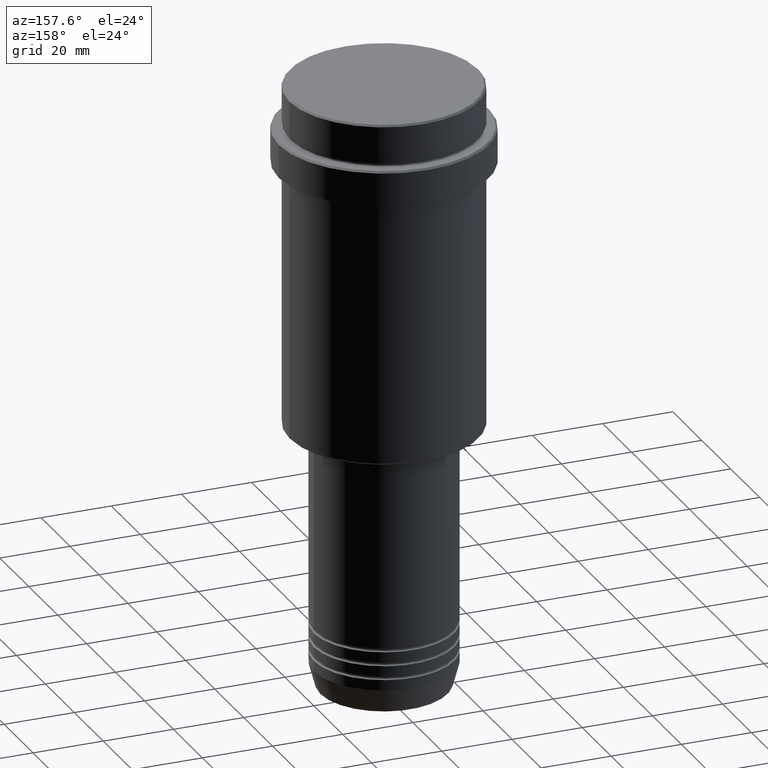
[diagram: clean part render]
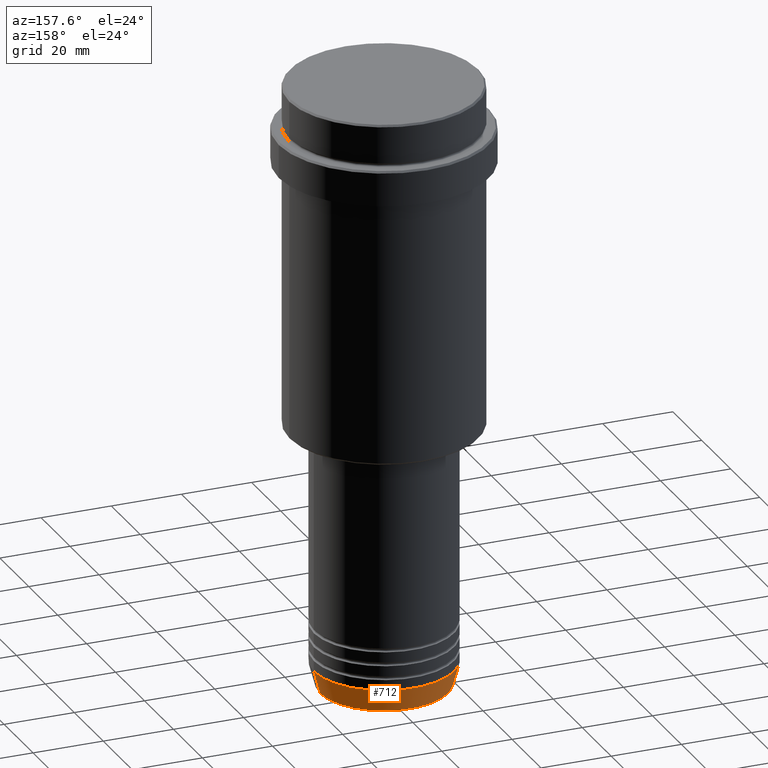
[diagram: same view with one face highlighted and labeled with its STEP entity id]
A machine part, auxiliary view. The second image highlights one B-rep face of the part: STEP entity #712.
In plain terms, the highlighted conical surface has half-angle 15 deg.
Its self-contained STEP definition (entity closure, byte-faithful):
#5 = EDGE_CURVE ( 'NONE', #1052, #1131, #1046, .T. ) ;
#42 = CARTESIAN_POINT ( 'NONE',  ( 20.00000000000000000, 0.000000000000000000, -166.0000000000000000 ) ) ;
#58 = CARTESIAN_POINT ( 'NONE',  ( -20.00000000000000000, 2.449293598294706513E-15, -166.0000000000000000 ) ) ;
#93 = CARTESIAN_POINT ( 'NONE',  ( 20.00000000000000000, 0.000000000000000000, -166.0000000000000000 ) ) ;
#147 = LINE ( 'NONE', #42, #1190 ) ;
#162 = DIRECTION ( 'NONE',  ( 1.000000000000000000, 0.000000000000000000, 0.000000000000000000 ) ) ;
#173 = CARTESIAN_POINT ( 'NONE',  ( 0.000000000000000000, 0.000000000000000000, -172.6294095225512422 ) ) ;
#180 = DIRECTION ( 'NONE',  ( 1.000000000000000000, 0.000000000000000000, 0.000000000000000000 ) ) ;
#191 = EDGE_LOOP ( 'NONE', ( #762, #300, #690, #685 ) ) ;
#225 = AXIS2_PLACEMENT_3D ( 'NONE', #1290, #1182, #180 ) ;
#291 = DIRECTION ( 'NONE',  ( 1.000000000000000000, 0.000000000000000000, 0.000000000000000000 ) ) ;
#300 = ORIENTED_EDGE ( 'NONE', *, *, #1193, .T. ) ;
#311 = DIRECTION ( 'NONE',  ( -0.000000000000000000, -0.000000000000000000, 1.000000000000000000 ) ) ;
#381 = EDGE_CURVE ( 'NONE', #1270, #406, #1024, .T. ) ;
#393 = LINE ( 'NONE', #829, #1003 ) ;
#406 = VERTEX_POINT ( 'NONE', #58 ) ;
#548 = CONICAL_SURFACE ( 'NONE', #891, 20.00000000000000000, 0.2617993877991496299 ) ;
#569 = DIRECTION ( 'NONE',  ( 0.2588190451025209615, 0.000000000000000000, 0.9659258262890682012 ) ) ;
#570 = DIRECTION ( 'NONE',  ( -0.000000000000000000, -0.000000000000000000, 1.000000000000000000 ) ) ;
#658 = CARTESIAN_POINT ( 'NONE',  ( 18.22365507213720193, 0.000000000000000000, -172.6294095225512422 ) ) ;
#685 = ORIENTED_EDGE ( 'NONE', *, *, #1174, .F. ) ;
#690 = ORIENTED_EDGE ( 'NONE', *, *, #381, .F. ) ;
#712 = ADVANCED_FACE ( 'NONE', ( #1008 ), #548, .T. ) ;
#762 = ORIENTED_EDGE ( 'NONE', *, *, #5, .T. ) ;
#807 = CARTESIAN_POINT ( 'NONE',  ( 0.000000000000000000, 0.000000000000000000, -166.0000000000000000 ) ) ;
#823 = AXIS2_PLACEMENT_3D ( 'NONE', #173, #311, #291 ) ;
#829 = CARTESIAN_POINT ( 'NONE',  ( -20.00000000000000000, 2.449293598294706513E-15, -166.0000000000000000 ) ) ;
#834 = DIRECTION ( 'NONE',  ( -0.2588190451025209615, 3.169619151431767406E-17, 0.9659258262890682012 ) ) ;
#891 = AXIS2_PLACEMENT_3D ( 'NONE', #807, #570, #162 ) ;
#1003 = VECTOR ( 'NONE', #834, 1000.000000000000000 ) ;
#1008 = FACE_OUTER_BOUND ( 'NONE', #191, .T. ) ;
#1024 = CIRCLE ( 'NONE', #225, 20.00000000000000000 ) ;
#1046 = CIRCLE ( 'NONE', #823, 18.22365507213720193 ) ;
#1052 = VERTEX_POINT ( 'NONE', #658 ) ;
#1131 = VERTEX_POINT ( 'NONE', #1243 ) ;
#1174 = EDGE_CURVE ( 'NONE', #1052, #1270, #147, .T. ) ;
#1182 = DIRECTION ( 'NONE',  ( -0.000000000000000000, -0.000000000000000000, 1.000000000000000000 ) ) ;
#1190 = VECTOR ( 'NONE', #569, 1000.000000000000000 ) ;
#1193 = EDGE_CURVE ( 'NONE', #1131, #406, #393, .T. ) ;
#1243 = CARTESIAN_POINT ( 'NONE',  ( -18.22365507213720193, 2.340523841790265507E-15, -172.6294095225512422 ) ) ;
#1270 = VERTEX_POINT ( 'NONE', #93 ) ;
#1290 = CARTESIAN_POINT ( 'NONE',  ( 0.000000000000000000, 0.000000000000000000, -166.0000000000000000 ) ) ;